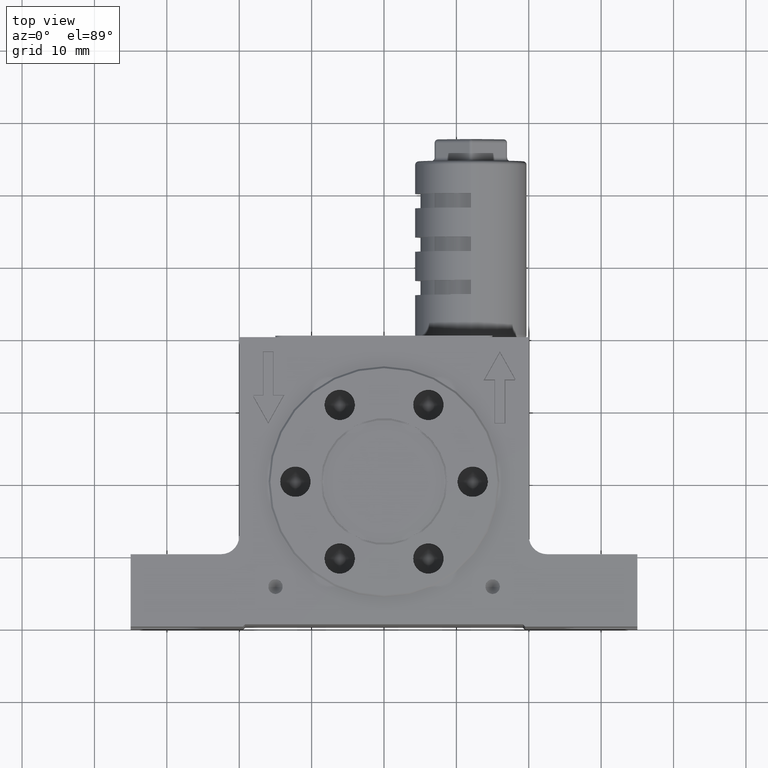
[diagram: clean part render]
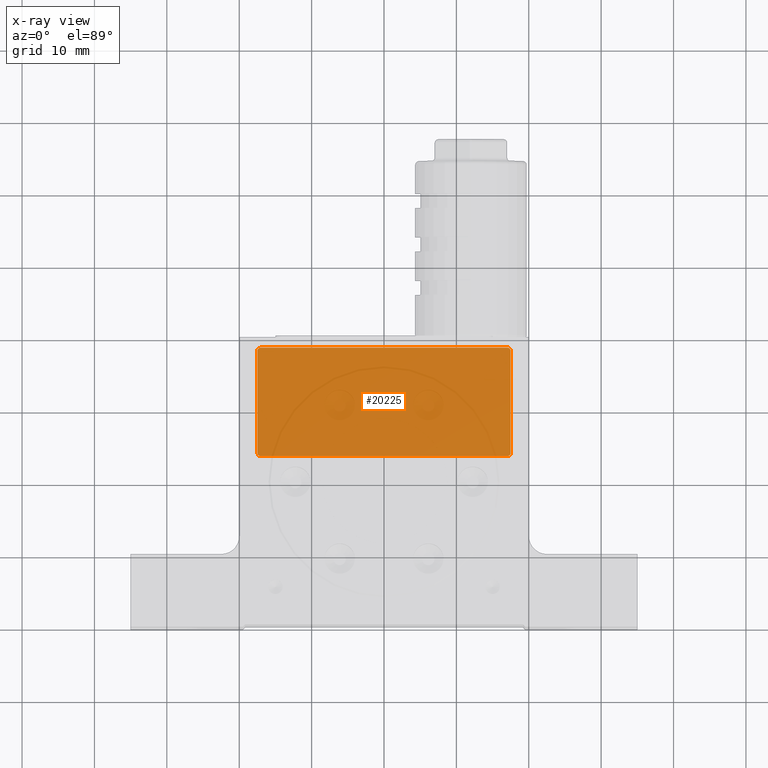
[diagram: x-ray — body ghosted, one internal face saturated and labeled with its STEP entity id]
A machine part, top view, then the same camera in x-ray: the body is ghosted and one INTERNAL B-rep face — a face not visible from any outside direction — is saturated and labeled: STEP entity #20225.
In plain terms, the highlighted planar face has unit normal (-0, -0, 1).
Its self-contained STEP definition (entity closure, byte-faithful):
#223 = EDGE_CURVE ( 'NONE', #1209, #20026, #23656, .T. ) ;
#283 = EDGE_CURVE ( 'NONE', #7451, #15937, #15337, .T. ) ;
#329 = DIRECTION ( 'NONE',  ( 1.000000000000000000, 0.0000000000000000000, 0.0000000000000000000 ) ) ;
#524 = LINE ( 'NONE', #15035, #19038 ) ;
#782 = DIRECTION ( 'NONE',  ( -1.000000000000000000, 3.520291789548760100E-029, -2.230997247578175100E-030 ) ) ;
#843 = VERTEX_POINT ( 'NONE', #19088 ) ;
#885 = ORIENTED_EDGE ( 'NONE', *, *, #10722, .F. ) ;
#978 = EDGE_CURVE ( 'NONE', #7451, #17916, #1665, .T. ) ;
#1209 = VERTEX_POINT ( 'NONE', #18989 ) ;
#1518 = CARTESIAN_POINT ( 'NONE',  ( -17.00000000000000000, 4.000000000000000000, -13.50000000000000000 ) ) ;
#1665 = CIRCLE ( 'NONE', #3835, 0.5000000000000004400 ) ;
#2008 = CARTESIAN_POINT ( 'NONE',  ( 17.00000000000000000, 4.500000000000000000, -13.50000000000000000 ) ) ;
#2369 = PLANE ( 'NONE',  #7438 ) ;
#2554 = CARTESIAN_POINT ( 'NONE',  ( -17.00000000000000000, 18.50000000000000000, -13.50000000000000000 ) ) ;
#2845 = CARTESIAN_POINT ( 'NONE',  ( 17.50000000000000000, 19.00000000000000000, -13.50000000000000000 ) ) ;
#3005 = DIRECTION ( 'NONE',  ( 2.095411779493314700E-030, -2.822144597828459900E-030, 1.000000000000000000 ) ) ;
#3757 = CARTESIAN_POINT ( 'NONE',  ( 17.50000000000000000, 18.50000000000000000, -13.50000000000000000 ) ) ;
#3835 = AXIS2_PLACEMENT_3D ( 'NONE', #8577, #3005, #8493 ) ;
#4811 = VECTOR ( 'NONE', #16447, 1000.000000000000000 ) ;
#5175 = CARTESIAN_POINT ( 'NONE',  ( 17.00000000000000000, 19.00000000000000000, -13.50000000000000000 ) ) ;
#5404 = CARTESIAN_POINT ( 'NONE',  ( -17.50000000000000000, 19.00000000000000000, -13.50000000000000000 ) ) ;
#5640 = AXIS2_PLACEMENT_3D ( 'NONE', #2554, #20891, #17108 ) ;
#6013 = VERTEX_POINT ( 'NONE', #1518 ) ;
#6626 = AXIS2_PLACEMENT_3D ( 'NONE', #2008, #20197, #329 ) ;
#7438 = AXIS2_PLACEMENT_3D ( 'NONE', #2845, #22618, #11572 ) ;
#7451 = VERTEX_POINT ( 'NONE', #3757 ) ;
#8034 = CARTESIAN_POINT ( 'NONE',  ( 17.50000000000000000, 4.500000000000000000, -13.50000000000000000 ) ) ;
#8165 = VERTEX_POINT ( 'NONE', #22958 ) ;
#8331 = EDGE_CURVE ( 'NONE', #17916, #843, #19165, .T. ) ;
#8493 = DIRECTION ( 'NONE',  ( 1.000000000000000000, 0.0000000000000000000, 0.0000000000000000000 ) ) ;
#8577 = CARTESIAN_POINT ( 'NONE',  ( 17.00000000000000000, 18.50000000000000000, -13.50000000000000000 ) ) ;
#9082 = CIRCLE ( 'NONE', #21936, 0.5000000000000004400 ) ;
#9651 = CIRCLE ( 'NONE', #6626, 0.5000000000000004400 ) ;
#10545 = ORIENTED_EDGE ( 'NONE', *, *, #223, .T. ) ;
#10716 = DIRECTION ( 'NONE',  ( 2.095411779493314700E-030, -2.822144597828459900E-030, 1.000000000000000000 ) ) ;
#10722 = EDGE_CURVE ( 'NONE', #8165, #6013, #524, .T. ) ;
#10864 = CARTESIAN_POINT ( 'NONE',  ( 17.50000000000000000, 19.00000000000000000, -13.50000000000000000 ) ) ;
#11572 = DIRECTION ( 'NONE',  ( 1.000000000000000000, -3.520291789548760100E-029, 2.230997247578175100E-030 ) ) ;
#11830 = FACE_OUTER_BOUND ( 'NONE', #17730, .T. ) ;
#12621 = DIRECTION ( 'NONE',  ( -1.000000000000000000, 3.520291789548760100E-029, -2.230997247578175100E-030 ) ) ;
#12759 = VECTOR ( 'NONE', #20372, 1000.000000000000000 ) ;
#13930 = EDGE_CURVE ( 'NONE', #8165, #15937, #9651, .T. ) ;
#14382 = ORIENTED_EDGE ( 'NONE', *, *, #14627, .T. ) ;
#14627 = EDGE_CURVE ( 'NONE', #20026, #6013, #9082, .T. ) ;
#15035 = CARTESIAN_POINT ( 'NONE',  ( 17.50000000000000000, 4.000000000000000000, -13.50000000000000000 ) ) ;
#15337 = LINE ( 'NONE', #20219, #4811 ) ;
#15937 = VERTEX_POINT ( 'NONE', #8034 ) ;
#16447 = DIRECTION ( 'NONE',  ( 3.268842376009564900E-029, -1.000000000000000000, 2.988032536986015300E-030 ) ) ;
#16489 = ORIENTED_EDGE ( 'NONE', *, *, #8331, .T. ) ;
#16628 = ORIENTED_EDGE ( 'NONE', *, *, #13930, .T. ) ;
#16860 = VECTOR ( 'NONE', #12621, 1000.000000000000000 ) ;
#16944 = ORIENTED_EDGE ( 'NONE', *, *, #978, .T. ) ;
#17076 = ORIENTED_EDGE ( 'NONE', *, *, #283, .F. ) ;
#17108 = DIRECTION ( 'NONE',  ( 1.000000000000000000, 0.0000000000000000000, 0.0000000000000000000 ) ) ;
#17730 = EDGE_LOOP ( 'NONE', ( #885, #16628, #17076, #16944, #16489, #20788, #10545, #14382 ) ) ;
#17916 = VERTEX_POINT ( 'NONE', #5175 ) ;
#18066 = CARTESIAN_POINT ( 'NONE',  ( -17.00000000000000000, 4.500000000000000000, -13.50000000000000000 ) ) ;
#18989 = CARTESIAN_POINT ( 'NONE',  ( -17.50000000000000000, 18.50000000000000000, -13.50000000000000000 ) ) ;
#19038 = VECTOR ( 'NONE', #782, 1000.000000000000000 ) ;
#19088 = CARTESIAN_POINT ( 'NONE',  ( -17.00000000000000000, 19.00000000000000000, -13.50000000000000000 ) ) ;
#19165 = LINE ( 'NONE', #10864, #16860 ) ;
#20026 = VERTEX_POINT ( 'NONE', #20243 ) ;
#20197 = DIRECTION ( 'NONE',  ( 2.095411779493314700E-030, -2.822144597828459900E-030, 1.000000000000000000 ) ) ;
#20219 = CARTESIAN_POINT ( 'NONE',  ( 17.50000000000000000, 19.00000000000000000, -13.50000000000000000 ) ) ;
#20225 = ADVANCED_FACE ( 'NONE', ( #11830 ), #2369, .T. ) ;
#20243 = CARTESIAN_POINT ( 'NONE',  ( -17.50000000000000000, 4.500000000000000000, -13.50000000000000000 ) ) ;
#20372 = DIRECTION ( 'NONE',  ( 3.268842376009564900E-029, -1.000000000000000000, 2.988032536986015300E-030 ) ) ;
#20788 = ORIENTED_EDGE ( 'NONE', *, *, #21383, .T. ) ;
#20891 = DIRECTION ( 'NONE',  ( 2.095411779493314700E-030, -2.822144597828459900E-030, 1.000000000000000000 ) ) ;
#21278 = CIRCLE ( 'NONE', #5640, 0.5000000000000004400 ) ;
#21383 = EDGE_CURVE ( 'NONE', #843, #1209, #21278, .T. ) ;
#21936 = AXIS2_PLACEMENT_3D ( 'NONE', #18066, #10716, #23525 ) ;
#22618 = DIRECTION ( 'NONE',  ( -2.230997247578175100E-030, -2.822144597828460300E-030, 1.000000000000000000 ) ) ;
#22958 = CARTESIAN_POINT ( 'NONE',  ( 17.00000000000000000, 4.000000000000000000, -13.50000000000000000 ) ) ;
#23525 = DIRECTION ( 'NONE',  ( 1.000000000000000000, 0.0000000000000000000, 0.0000000000000000000 ) ) ;
#23656 = LINE ( 'NONE', #5404, #12759 ) ;